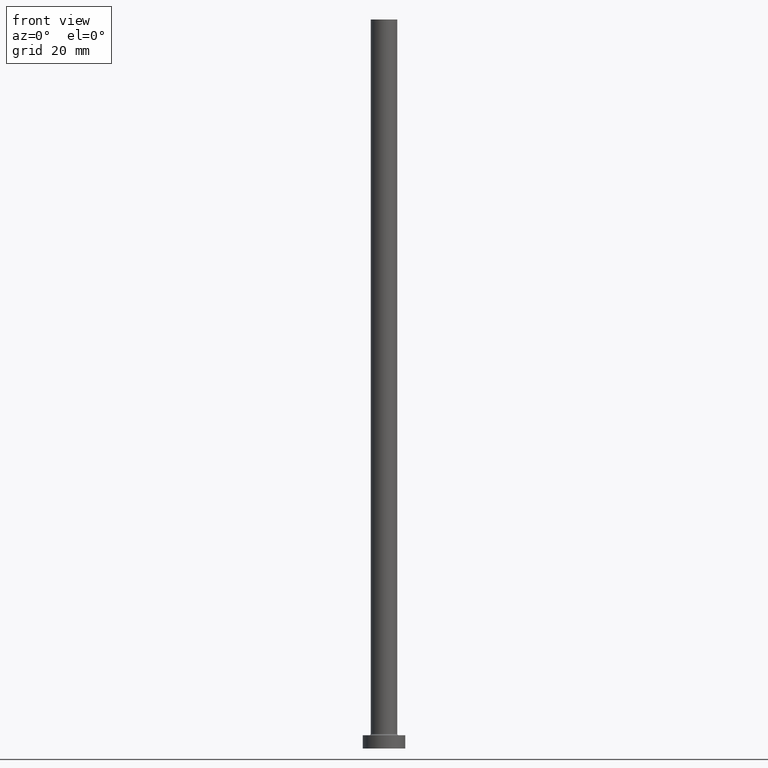
[diagram: clean part render]
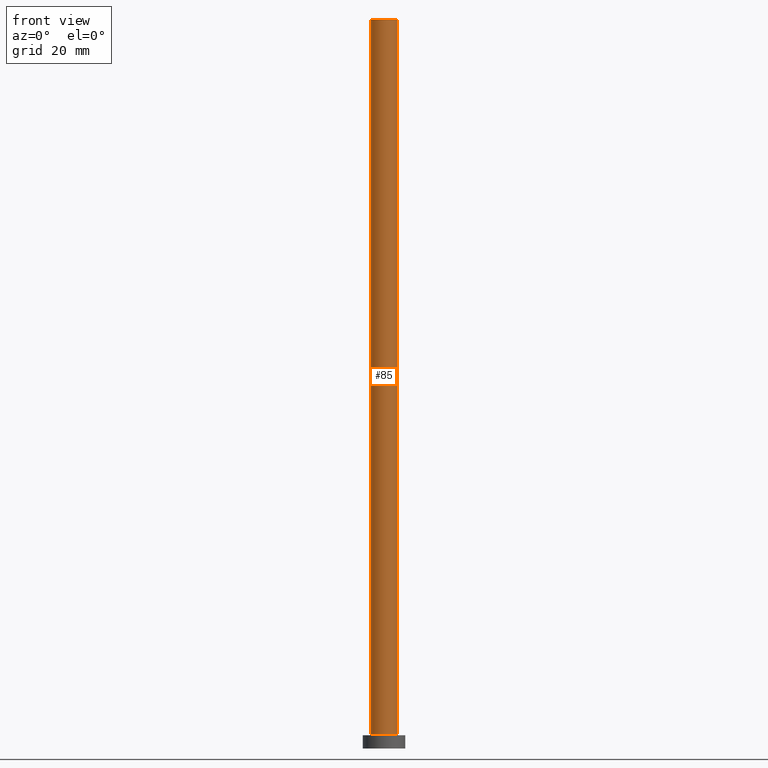
[diagram: same view with one face highlighted and labeled with its STEP entity id]
A machine part, front view. The second image highlights one B-rep face of the part: STEP entity #85.
In plain terms, the highlighted cylindrical surface (edge-blend (fillet) strip) has radius 5 mm, axis along (-0, -0, -1).
Its self-contained STEP definition (entity closure, byte-faithful):
#6 = DIRECTION ( 'NONE',  ( 0.000000000000000000, 0.000000000000000000, 1.000000000000000000 ) ) ;
#7 = VECTOR ( 'NONE', #149, 1000.000000000000000 ) ;
#17 = VERTEX_POINT ( 'NONE', #35 ) ;
#34 = LINE ( 'NONE', #174, #128 ) ;
#35 = CARTESIAN_POINT ( 'NONE',  ( 5.000000000000000000, 6.123233995736766282E-16, 5.500000000000005329 ) ) ;
#39 = DIRECTION ( 'NONE',  ( 1.000000000000000000, 0.000000000000000000, 0.000000000000000000 ) ) ;
#58 = AXIS2_PLACEMENT_3D ( 'NONE', #332, #6, #39 ) ;
#69 = CARTESIAN_POINT ( 'NONE',  ( 5.000000000000000000, 6.123233995736766282E-16, 275.0000000000000000 ) ) ;
#71 = ORIENTED_EDGE ( 'NONE', *, *, #240, .F. ) ;
#83 = VERTEX_POINT ( 'NONE', #69 ) ;
#85 = ADVANCED_FACE ( 'NONE', ( #453 ), #280, .T. ) ;
#88 = VERTEX_POINT ( 'NONE', #209 ) ;
#98 = CIRCLE ( 'NONE', #58, 5.000000000000000000 ) ;
#106 = AXIS2_PLACEMENT_3D ( 'NONE', #255, #186, #281 ) ;
#111 = CARTESIAN_POINT ( 'NONE',  ( -5.000000000000000000, 0.000000000000000000, 275.0000000000000000 ) ) ;
#123 = EDGE_LOOP ( 'NONE', ( #71, #261, #126, #130 ) ) ;
#126 = ORIENTED_EDGE ( 'NONE', *, *, #196, .T. ) ;
#128 = VECTOR ( 'NONE', #314, 1000.000000000000000 ) ;
#130 = ORIENTED_EDGE ( 'NONE', *, *, #389, .T. ) ;
#143 = CARTESIAN_POINT ( 'NONE',  ( 0.000000000000000000, 0.000000000000000000, 275.0000000000000000 ) ) ;
#149 = DIRECTION ( 'NONE',  ( -0.000000000000000000, -0.000000000000000000, -1.000000000000000000 ) ) ;
#174 = CARTESIAN_POINT ( 'NONE',  ( 5.000000000000000000, 6.123233995736766282E-16, 275.0000000000000000 ) ) ;
#186 = DIRECTION ( 'NONE',  ( 0.000000000000000000, 0.000000000000000000, 1.000000000000000000 ) ) ;
#188 = EDGE_CURVE ( 'NONE', #88, #83, #306, .T. ) ;
#196 = EDGE_CURVE ( 'NONE', #88, #208, #361, .T. ) ;
#208 = VERTEX_POINT ( 'NONE', #289 ) ;
#209 = CARTESIAN_POINT ( 'NONE',  ( -5.000000000000000000, 0.000000000000000000, 275.0000000000000000 ) ) ;
#210 = DIRECTION ( 'NONE',  ( -0.000000000000000000, -0.000000000000000000, -1.000000000000000000 ) ) ;
#240 = EDGE_CURVE ( 'NONE', #83, #17, #34, .T. ) ;
#255 = CARTESIAN_POINT ( 'NONE',  ( 0.000000000000000000, 0.000000000000000000, 275.0000000000000000 ) ) ;
#261 = ORIENTED_EDGE ( 'NONE', *, *, #188, .F. ) ;
#280 = CYLINDRICAL_SURFACE ( 'NONE', #363, 5.000000000000000000 ) ;
#281 = DIRECTION ( 'NONE',  ( 1.000000000000000000, 0.000000000000000000, 0.000000000000000000 ) ) ;
#289 = CARTESIAN_POINT ( 'NONE',  ( -5.000000000000000000, 0.000000000000000000, 5.500000000000005329 ) ) ;
#306 = CIRCLE ( 'NONE', #106, 5.000000000000000000 ) ;
#314 = DIRECTION ( 'NONE',  ( -0.000000000000000000, -0.000000000000000000, -1.000000000000000000 ) ) ;
#332 = CARTESIAN_POINT ( 'NONE',  ( 0.000000000000000000, 0.000000000000000000, 5.500000000000005329 ) ) ;
#360 = DIRECTION ( 'NONE',  ( -1.000000000000000000, 0.000000000000000000, 0.000000000000000000 ) ) ;
#361 = LINE ( 'NONE', #111, #7 ) ;
#363 = AXIS2_PLACEMENT_3D ( 'NONE', #143, #210, #360 ) ;
#389 = EDGE_CURVE ( 'NONE', #208, #17, #98, .T. ) ;
#453 = FACE_OUTER_BOUND ( 'NONE', #123, .T. ) ;